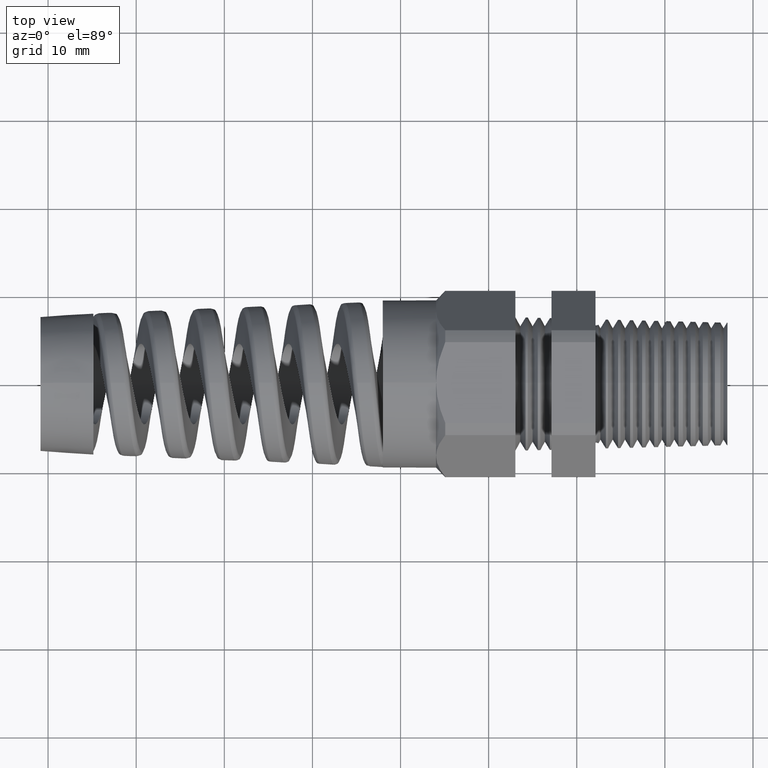
[diagram: clean part render]
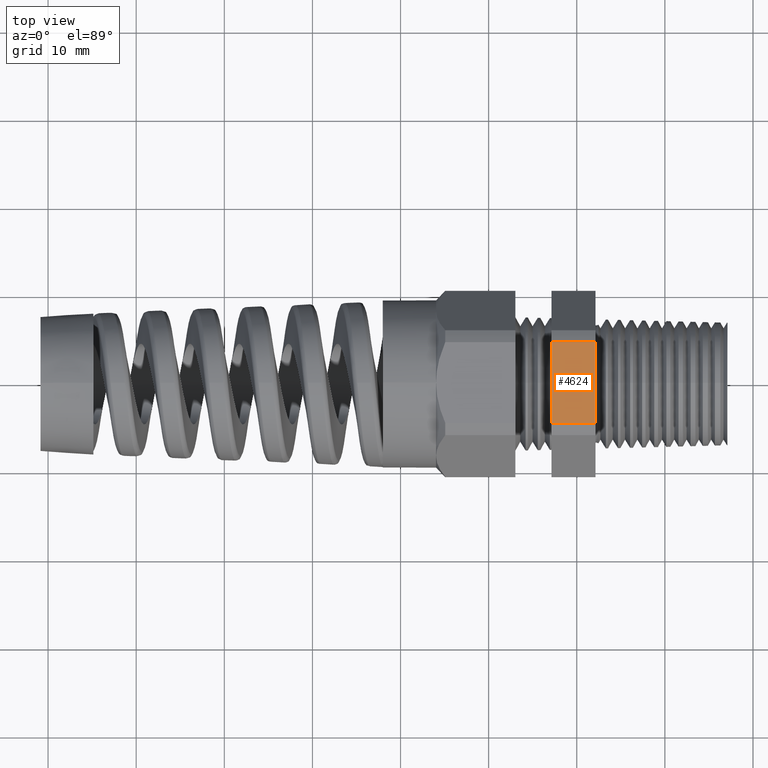
[diagram: same view with one face highlighted and labeled with its STEP entity id]
A machine part, top view. The second image highlights one B-rep face of the part: STEP entity #4624.
In plain terms, the highlighted planar face has unit normal (0, 0, 1).
Its self-contained STEP definition (entity closure, byte-faithful):
#36 = DIRECTION ( 'NONE',  ( -1.000000000000000000, 0.0000000000000000000, 0.0000000000000000000 ) ) ;
#46 = VECTOR ( 'NONE', #36, 39.37007874015748100 ) ;
#3153 = LINE ( 'NONE', #3169, #46 ) ;
#3169 = CARTESIAN_POINT ( 'NONE',  ( 0.2800000000000000300, 0.1806628420566886700, 0.3749999999999999400 ) ) ;
#4174 = VERTEX_POINT ( 'NONE', #6937 ) ;
#4272 = VERTEX_POINT ( 'NONE', #7017 ) ;
#4287 = EDGE_CURVE ( 'NONE', #4174, #4272, #7074, .T. ) ;
#4318 = EDGE_LOOP ( 'NONE', ( #4620, #4619, #4618, #4522 ) ) ;
#4356 = EDGE_CURVE ( 'NONE', #4542, #4272, #3153, .T. ) ;
#4522 = ORIENTED_EDGE ( 'NONE', *, *, #4539, .F. ) ;
#4539 = EDGE_CURVE ( 'NONE', #4542, #4541, #7233, .T. ) ;
#4541 = VERTEX_POINT ( 'NONE', #7229 ) ;
#4542 = VERTEX_POINT ( 'NONE', #7228 ) ;
#4618 = ORIENTED_EDGE ( 'NONE', *, *, #4621, .F. ) ;
#4619 = ORIENTED_EDGE ( 'NONE', *, *, #4287, .F. ) ;
#4620 = ORIENTED_EDGE ( 'NONE', *, *, #4356, .T. ) ;
#4621 = EDGE_CURVE ( 'NONE', #4541, #4174, #7275, .T. ) ;
#4624 = ADVANCED_FACE ( 'NONE', ( #7271 ), #7336, .T. ) ;
#6937 = CARTESIAN_POINT ( 'NONE',  ( -0.5068503937007874400, -0.1806628420566887000, 0.3750000000000000600 ) ) ;
#7017 = CARTESIAN_POINT ( 'NONE',  ( -0.5068503937007874400, 0.1806628420566886700, 0.3749999999999999400 ) ) ;
#7071 = DIRECTION ( 'NONE',  ( 0.0000000000000000000, 1.000000000000000000, 0.0000000000000000000 ) ) ;
#7072 = VECTOR ( 'NONE', #7071, 39.37007874015748100 ) ;
#7073 = CARTESIAN_POINT ( 'NONE',  ( -0.5068503937007874400, 0.7500000000000001100, 0.3749999999999999400 ) ) ;
#7074 = LINE ( 'NONE', #7073, #7072 ) ;
#7228 = CARTESIAN_POINT ( 'NONE',  ( -0.3100000000000000000, 0.1806628420566886700, 0.3749999999999999400 ) ) ;
#7229 = CARTESIAN_POINT ( 'NONE',  ( -0.3100000000000000000, -0.1806628420566887000, 0.3750000000000000600 ) ) ;
#7230 = DIRECTION ( 'NONE',  ( 0.0000000000000000000, -1.000000000000000000, 0.0000000000000000000 ) ) ;
#7231 = VECTOR ( 'NONE', #7230, 39.37007874015748100 ) ;
#7232 = CARTESIAN_POINT ( 'NONE',  ( -0.3100000000000000000, 0.7500000000000001100, 0.3749999999999999400 ) ) ;
#7233 = LINE ( 'NONE', #7232, #7231 ) ;
#7271 = FACE_OUTER_BOUND ( 'NONE', #4318, .T. ) ;
#7272 = DIRECTION ( 'NONE',  ( -1.000000000000000000, 0.0000000000000000000, 0.0000000000000000000 ) ) ;
#7273 = VECTOR ( 'NONE', #7272, 39.37007874015748100 ) ;
#7274 = CARTESIAN_POINT ( 'NONE',  ( 0.2800000000000000300, -0.1806628420566887000, 0.3750000000000000600 ) ) ;
#7275 = LINE ( 'NONE', #7274, #7273 ) ;
#7332 = DIRECTION ( 'NONE',  ( 1.000000000000000000, 0.0000000000000000000, 0.0000000000000000000 ) ) ;
#7333 = DIRECTION ( 'NONE',  ( 0.0000000000000000000, 0.0000000000000000000, 1.000000000000000000 ) ) ;
#7334 = CARTESIAN_POINT ( 'NONE',  ( 0.2800000000000000300, -0.1806628420566886700, 0.3749999999999999400 ) ) ;
#7335 = AXIS2_PLACEMENT_3D ( 'NONE', #7334, #7333, #7332 ) ;
#7336 = PLANE ( 'NONE',  #7335 ) ;